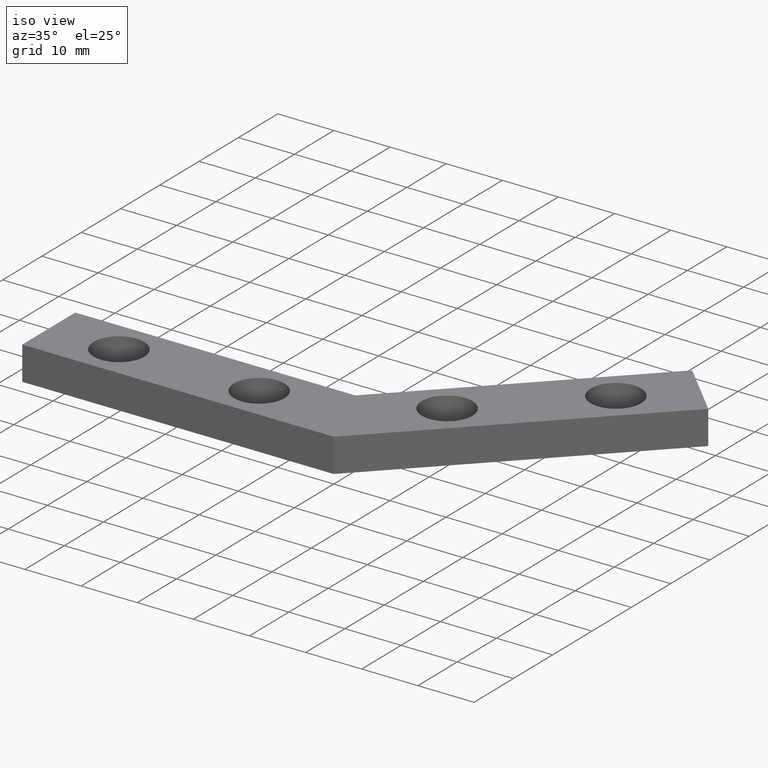
[diagram: clean part render]
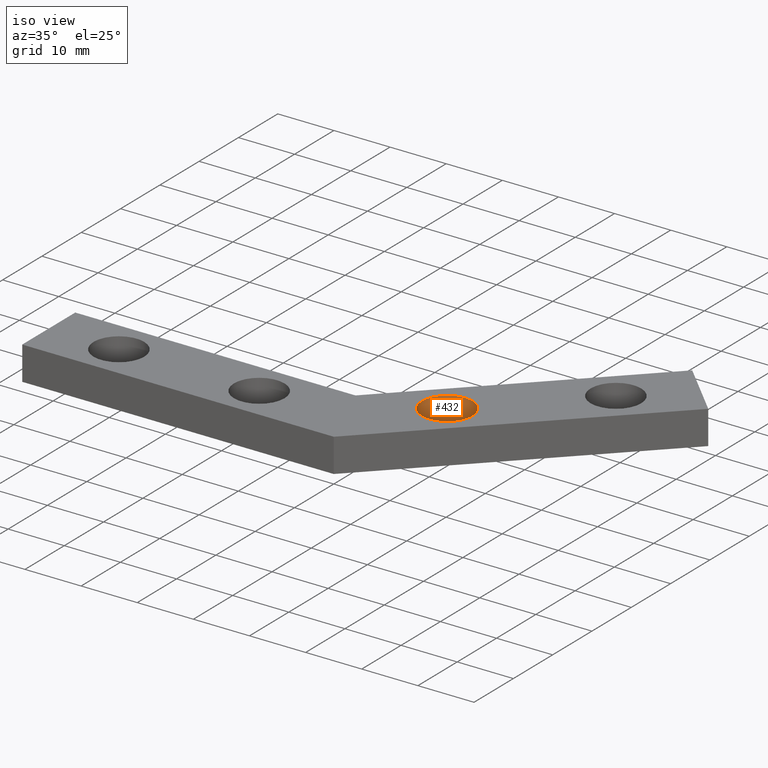
[diagram: same view with one face highlighted and labeled with its STEP entity id]
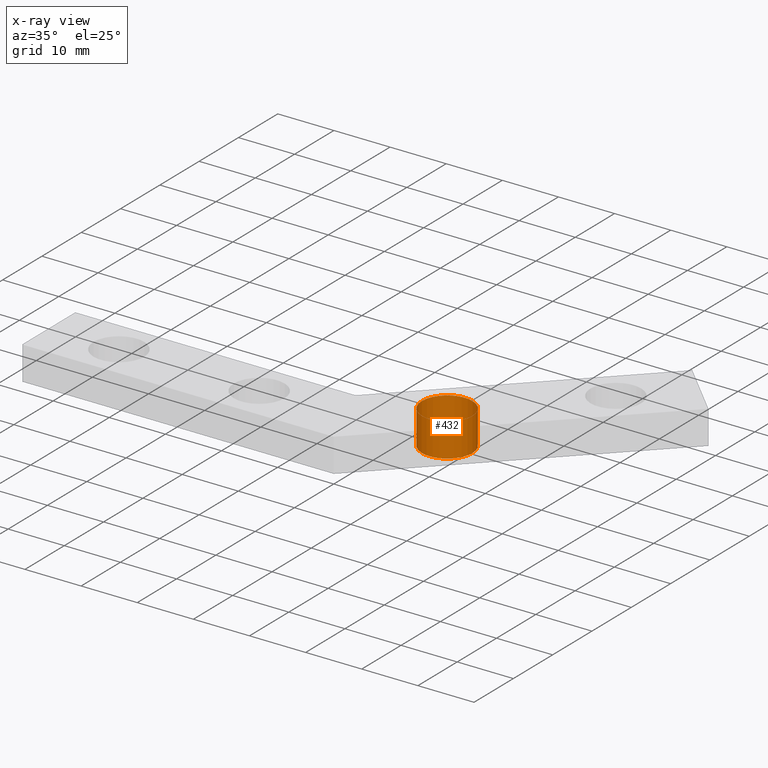
[diagram: x-ray of the same camera — body ghosted, the highlighted face saturated]
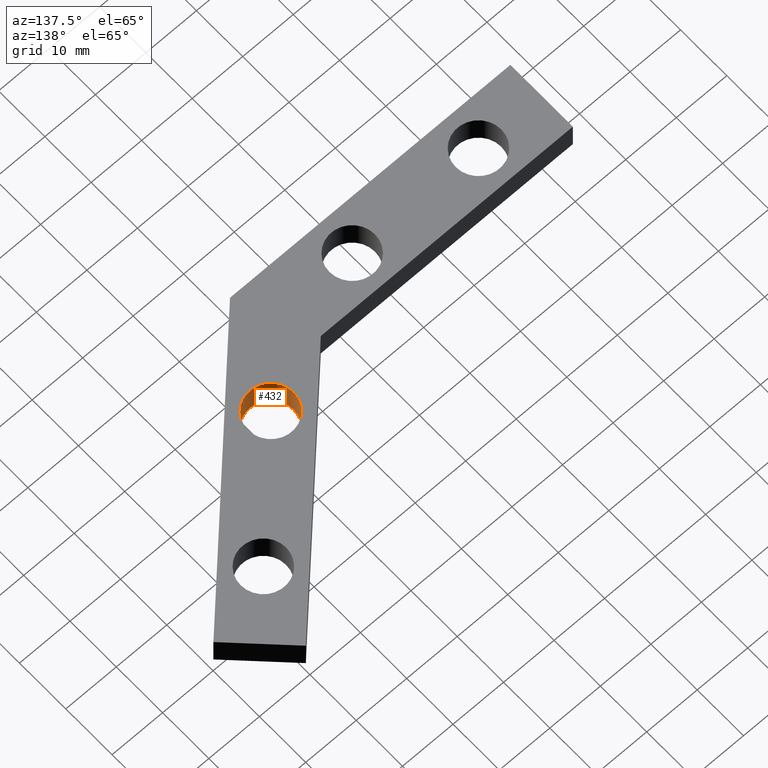
[diagram: same view with one face highlighted and labeled with its STEP entity id]
A machine part, iso view. The second image highlights one B-rep face of the part: STEP entity #432.
The next image is the same camera in x-ray: the body ghosted, the highlighted face saturated — about 0% of this face is hidden behind the body in this view.
A second angle (auxiliary view) of the same face is appended — the face is thin or edge-on in the first view.
In plain terms, the highlighted cylindrical surface (bore or boss wall) has radius 4.5 mm, axis along (0, 0, 1).
Its self-contained STEP definition (entity closure, byte-faithful):
#241=CARTESIAN_POINT('',(3.454950999967878,17.500892999929874,6.0));
#242=VERTEX_POINT('',#241);
#243=CARTESIAN_POINT('',(12.454950999967878,17.500892999929874,6.0));
#244=VERTEX_POINT('',#243);
#245=CARTESIAN_POINT('',(7.954950999967878,17.500892999929874,6.0));
#246=DIRECTION('',(0.0,0.0,1.0));
#247=DIRECTION('',(1.0,0.0,0.0));
#248=AXIS2_PLACEMENT_3D('',#245,#246,#247);
#249=CIRCLE('',#248,4.500000000000000);
#250=EDGE_CURVE('',#242,#244,#249,.T.);
#252=CARTESIAN_POINT('',(7.954950999967878,17.500892999929874,6.0));
#253=DIRECTION('',(0.0,0.0,1.0));
#254=DIRECTION('',(1.0,0.0,0.0));
#255=AXIS2_PLACEMENT_3D('',#252,#253,#254);
#256=CIRCLE('',#255,4.500000000000000);
#257=EDGE_CURVE('',#244,#242,#256,.T.);
#335=CARTESIAN_POINT('',(3.454950999967878,17.500892999929874,0.0));
#336=VERTEX_POINT('',#335);
#337=CARTESIAN_POINT('',(12.454950999967878,17.500892999929874,0.0));
#338=VERTEX_POINT('',#337);
#339=CARTESIAN_POINT('',(7.954950999967878,17.500892999929874,0.0));
#340=DIRECTION('',(0.0,0.0,-1.0));
#341=DIRECTION('',(1.0,0.0,0.0));
#342=AXIS2_PLACEMENT_3D('',#339,#340,#341);
#343=CIRCLE('',#342,4.500000000000000);
#344=EDGE_CURVE('',#336,#338,#343,.T.);
#346=CARTESIAN_POINT('',(7.954950999967878,17.500892999929874,0.0));
#347=DIRECTION('',(0.0,0.0,-1.0));
#348=DIRECTION('',(1.0,0.0,0.0));
#349=AXIS2_PLACEMENT_3D('',#346,#347,#348);
#350=CIRCLE('',#349,4.500000000000000);
#351=EDGE_CURVE('',#338,#336,#350,.T.);
#414=CARTESIAN_POINT('',(7.954950999967878,17.500892999929874,6.0));
#415=DIRECTION('',(0.0,0.0,1.0));
#416=DIRECTION('',(1.0,0.0,0.0));
#417=AXIS2_PLACEMENT_3D('',#414,#415,#416);
#418=CYLINDRICAL_SURFACE('',#417,4.500000000000000);
#419=CARTESIAN_POINT('',(12.454950999967878,17.500892999929874,6.0));
#420=DIRECTION('',(0.0,0.0,-1.0));
#421=VECTOR('',#420,6.0);
#422=LINE('',#419,#421);
#423=EDGE_CURVE('',#244,#338,#422,.T.);
#424=ORIENTED_EDGE('',*,*,#423,.T.);
#425=ORIENTED_EDGE('',*,*,#351,.T.);
#426=ORIENTED_EDGE('',*,*,#344,.T.);
#427=ORIENTED_EDGE('',*,*,#423,.F.);
#428=ORIENTED_EDGE('',*,*,#257,.T.);
#429=ORIENTED_EDGE('',*,*,#250,.T.);
#430=EDGE_LOOP('',(#424,#425,#426,#427,#428,#429));
#431=FACE_OUTER_BOUND('',#430,.T.);
#432=ADVANCED_FACE('',(#431),#418,.F.);